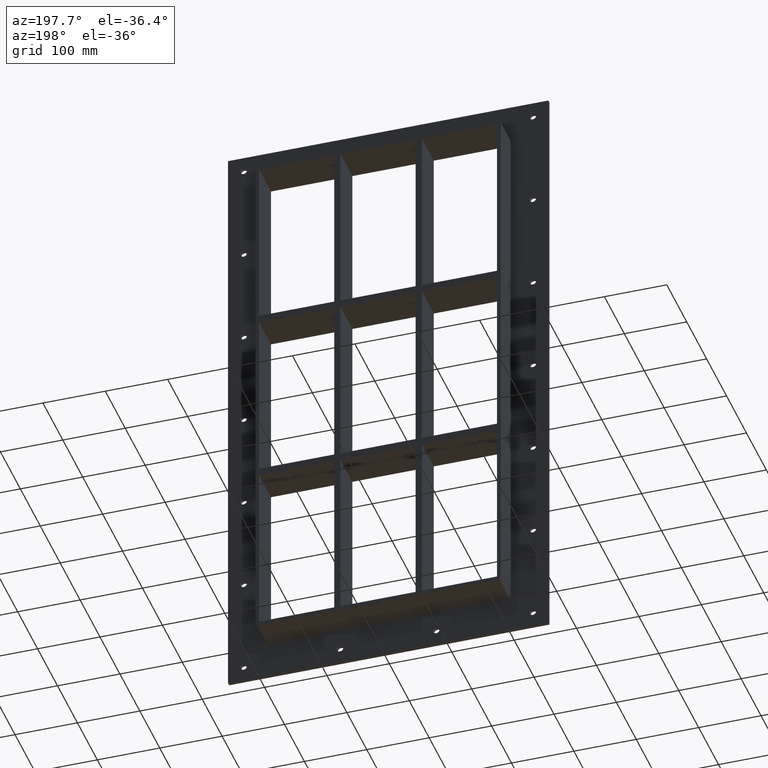
[diagram: clean part render]
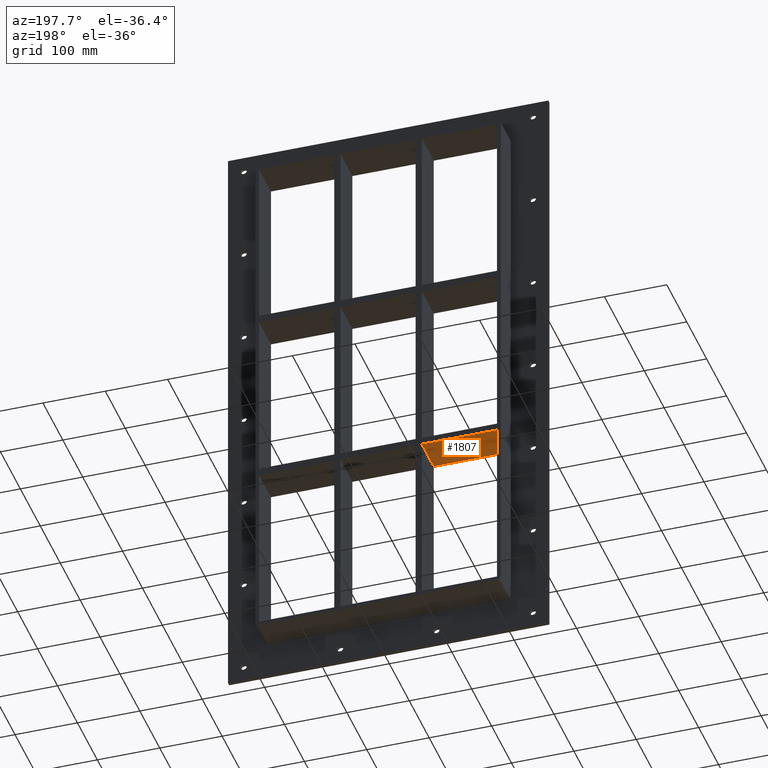
[diagram: same view with one face highlighted and labeled with its STEP entity id]
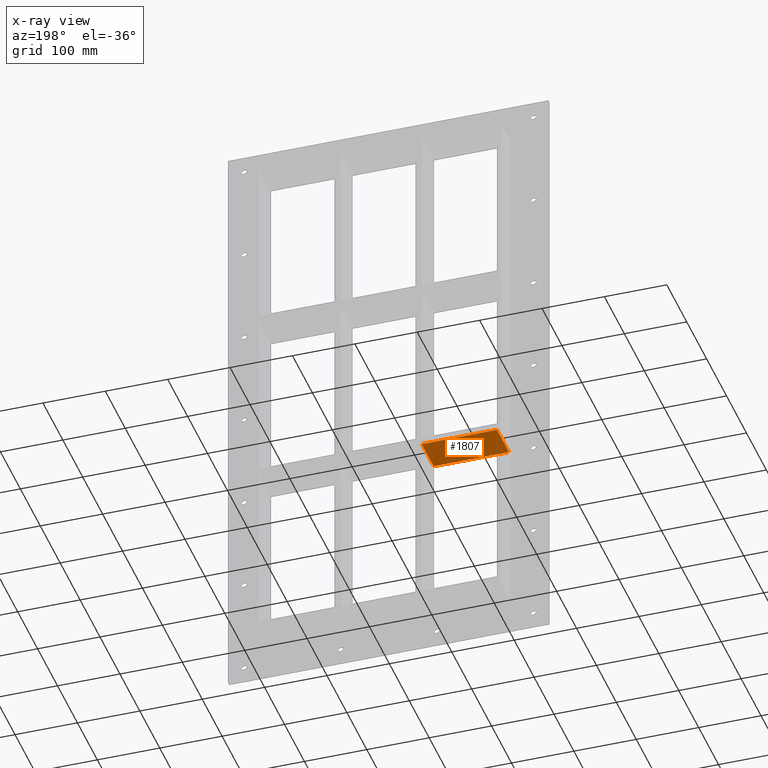
[diagram: x-ray of the same camera — body ghosted, the highlighted face saturated]
A machine part, auxiliary view. The second image highlights one B-rep face of the part: STEP entity #1807.
The next image is the same camera in x-ray: the body ghosted, the highlighted face saturated — about 0% of this face is hidden behind the body in this view.
In plain terms, the highlighted planar face has unit normal (0, 0, -1).
Its self-contained STEP definition (entity closure, byte-faithful):
#1218=CARTESIAN_POINT('',(-190.75000000000045,57.0,-151.00000000001017));
#1219=VERTEX_POINT('',#1218);
#1236=CARTESIAN_POINT('',(-70.250000000002075,57.0,-151.00000000001017));
#1237=VERTEX_POINT('',#1236);
#1244=CARTESIAN_POINT('',(-70.250000000002103,57.0,-151.0000000000102));
#1245=DIRECTION('',(-1.0,0.0,0.0));
#1246=VECTOR('',#1245,120.49999999999835);
#1247=LINE('',#1244,#1246);
#1248=EDGE_CURVE('',#1237,#1219,#1247,.T.);
#1681=CARTESIAN_POINT('',(-70.250000000002075,-3.0,-151.00000000001017));
#1682=VERTEX_POINT('',#1681);
#1683=CARTESIAN_POINT('',(-190.75000000000045,-3.0,-151.00000000001017));
#1684=VERTEX_POINT('',#1683);
#1685=CARTESIAN_POINT('',(-70.250000000002103,-3.0,-151.0000000000102));
#1686=DIRECTION('',(-1.0,0.0,0.0));
#1687=VECTOR('',#1686,120.49999999999835);
#1688=LINE('',#1685,#1687);
#1689=EDGE_CURVE('',#1682,#1684,#1688,.T.);
#1786=CARTESIAN_POINT('',(190.75000000000728,-3.0,-151.0000000000102));
#1787=DIRECTION('',(0.0,0.0,-1.0));
#1788=DIRECTION('',(-1.0,0.0,0.0));
#1789=AXIS2_PLACEMENT_3D('',#1786,#1787,#1788);
#1790=PLANE('',#1789);
#1791=CARTESIAN_POINT('',(-70.250000000002075,-3.0,-151.00000000001017));
#1792=DIRECTION('',(0.0,1.0,0.0));
#1793=VECTOR('',#1792,60.0);
#1794=LINE('',#1791,#1793);
#1795=EDGE_CURVE('',#1682,#1237,#1794,.T.);
#1796=ORIENTED_EDGE('',*,*,#1795,.F.);
#1797=ORIENTED_EDGE('',*,*,#1689,.T.);
#1798=CARTESIAN_POINT('',(-190.75000000000003,57.000000000000007,-151.00000000001017));
#1799=DIRECTION('',(0.0,-1.0,0.0));
#1800=VECTOR('',#1799,60.000000000000007);
#1801=LINE('',#1798,#1800);
#1802=EDGE_CURVE('',#1219,#1684,#1801,.T.);
#1803=ORIENTED_EDGE('',*,*,#1802,.F.);
#1804=ORIENTED_EDGE('',*,*,#1248,.F.);
#1805=EDGE_LOOP('',(#1796,#1797,#1803,#1804));
#1806=FACE_OUTER_BOUND('',#1805,.T.);
#1807=ADVANCED_FACE('',(#1806),#1790,.T.);